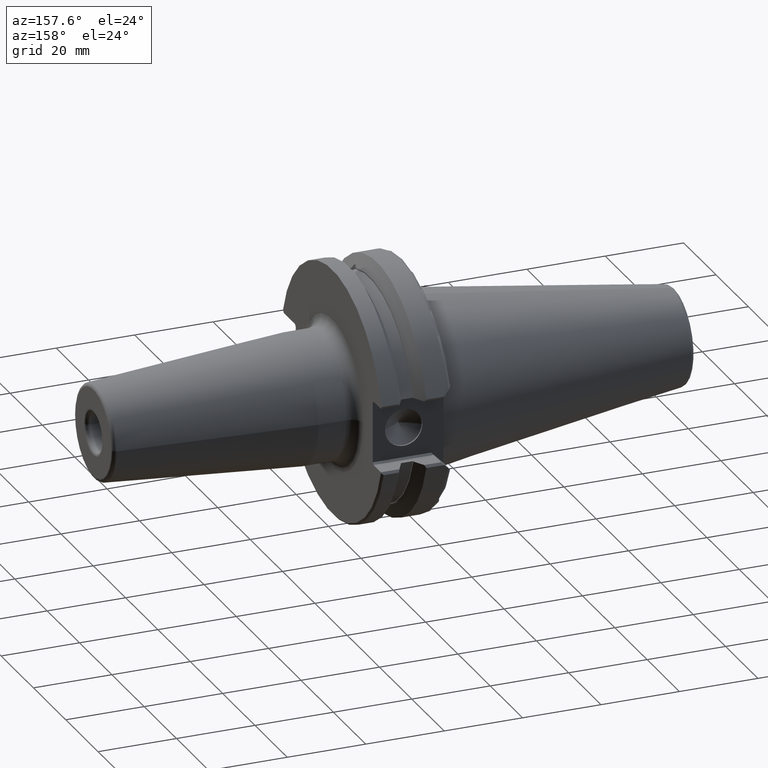
[diagram: clean part render]
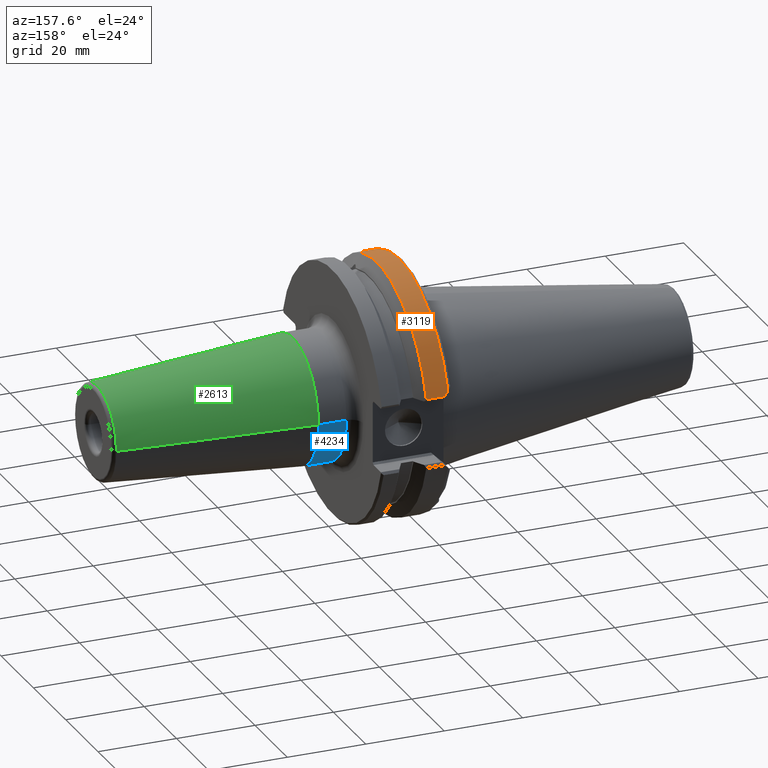
[diagram: same view with three faces highlighted in distinct colors, each labeled with its STEP entity id]
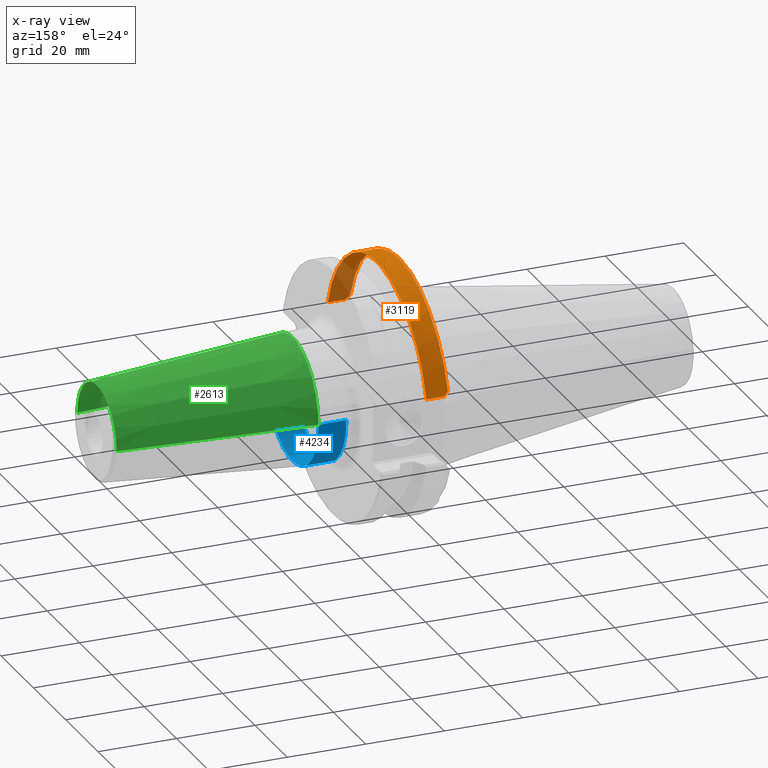
[diagram: x-ray of the same camera — body ghosted, the three highlighted faces saturated]
A machine part, auxiliary view with three faces highlighted in distinct colors.
The next image is the same camera in x-ray (body ghosted, the three faces saturated) — at least one of them is partly hidden behind the body in this view.
Their STEP definitions:

[orange] entity #3119 — the highlighted cylindrical surface (partial cylindrical patch) has radius 31.75 mm, axis along (1, 0, 0).
#699=DIRECTION('',(-1.E0,0.E0,0.E0));
#700=VECTOR('',#699,4.588873230924E0);
#701=CARTESIAN_POINT('',(7.649833230924E0,3.049771389266E1,8.82904E0));
#702=LINE('',#701,#700);
#703=DIRECTION('',(1.E0,0.E0,0.E0));
#704=VECTOR('',#703,4.588873230924E0);
#705=CARTESIAN_POINT('',(3.06096E0,-3.049771389266E1,8.82904E0));
#706=LINE('',#705,#704);
#707=CARTESIAN_POINT('',(2.E0,-3.017035631212E1,9.89E0));
#708=CARTESIAN_POINT('',(2.352653116158E0,-3.028595784107E1,9.537346883842E0));
#709=CARTESIAN_POINT('',(2.706311587220E0,-3.039504373733E1,9.183688412780E0));
#710=CARTESIAN_POINT('',(3.06096E0,-3.049771389266E1,8.82904E0));
#712=CARTESIAN_POINT('',(3.06096E0,3.049771389266E1,8.82904E0));
#713=CARTESIAN_POINT('',(2.706311587220E0,3.039504373733E1,9.183688412780E0));
#714=CARTESIAN_POINT('',(2.352653116158E0,3.028595784107E1,9.537346883842E0));
#715=CARTESIAN_POINT('',(2.E0,3.017035631212E1,9.89E0));
#807=CARTESIAN_POINT('',(7.649833230924E0,-3.049771389266E1,8.82904E0));
#813=CARTESIAN_POINT('',(7.649833230924E0,0.E0,0.E0));
#814=DIRECTION('',(-1.E0,0.E0,0.E0));
#815=DIRECTION('',(0.E0,-9.605579178790E-1,2.7808E-1));
#816=AXIS2_PLACEMENT_3D('',#813,#814,#815);
#822=CARTESIAN_POINT('',(7.649833230924E0,3.049771389266E1,8.82904E0));
#1033=CARTESIAN_POINT('',(2.E0,-3.017035631212E1,9.89E0));
#1468=CARTESIAN_POINT('',(2.E0,0.E0,0.E0));
#1469=DIRECTION('',(1.E0,0.E0,0.E0));
#1470=DIRECTION('',(0.E0,9.502474429013E-1,3.114960629921E-1));
#1471=AXIS2_PLACEMENT_3D('',#1468,#1469,#1470);
#1494=CARTESIAN_POINT('',(2.E0,3.017035631212E1,9.89E0));
#1917=VERTEX_POINT('',#1033);
#1920=VERTEX_POINT('',#1494);
#1934=CARTESIAN_POINT('',(3.06096E0,3.049771389266E1,8.82904E0));
#1936=VERTEX_POINT('',#1934);
#1940=VERTEX_POINT('',#822);
#1947=VERTEX_POINT('',#807);
#1951=CARTESIAN_POINT('',(3.06096E0,-3.049771389266E1,8.82904E0));
#1952=VERTEX_POINT('',#1951);
#3100=CARTESIAN_POINT('',(9.75E-2,0.E0,0.E0));
#3101=DIRECTION('',(1.E0,0.E0,0.E0));
#3102=DIRECTION('',(0.E0,0.E0,1.E0));
#3103=AXIS2_PLACEMENT_3D('',#3100,#3101,#3102);
#3104=CYLINDRICAL_SURFACE('',#3103,3.175E1);
#3106=ORIENTED_EDGE('',*,*,#3105,.F.);
#3108=ORIENTED_EDGE('',*,*,#3107,.F.);
#3110=ORIENTED_EDGE('',*,*,#3109,.F.);
#3112=ORIENTED_EDGE('',*,*,#3111,.F.);
#3114=ORIENTED_EDGE('',*,*,#3113,.F.);
#3116=ORIENTED_EDGE('',*,*,#3115,.F.);
#3117=EDGE_LOOP('',(#3106,#3108,#3110,#3112,#3114,#3116));
#3118=FACE_OUTER_BOUND('',#3117,.F.);
#3119=ADVANCED_FACE('',(#3118),#3104,.T.);
#711=B_SPLINE_CURVE_WITH_KNOTS('',3,(#707,#708,#709,#710),.UNSPECIFIED.,.F.,.F.,
(4,4),(0.E0,1.E0),.UNSPECIFIED.);
#716=B_SPLINE_CURVE_WITH_KNOTS('',3,(#712,#713,#714,#715),.UNSPECIFIED.,.F.,.F.,
(4,4),(0.E0,1.E0),.UNSPECIFIED.);
#817=CIRCLE('',#816,3.175E1);
#1472=CIRCLE('',#1471,3.175E1);
#3105=EDGE_CURVE('',#1940,#1936,#702,.T.);
#3107=EDGE_CURVE('',#1947,#1940,#817,.T.);
#3109=EDGE_CURVE('',#1952,#1947,#706,.T.);
#3111=EDGE_CURVE('',#1917,#1952,#711,.T.);
#3113=EDGE_CURVE('',#1920,#1917,#1472,.T.);
#3115=EDGE_CURVE('',#1936,#1920,#716,.T.);

[blue] entity #4234 — the highlighted cylindrical surface (partial cylindrical patch) has radius 16.0001 mm, axis along (1, 0, 0).
#1776=CARTESIAN_POINT('',(2.205E1,0.E0,0.E0));
#1777=DIRECTION('',(1.E0,0.E0,0.E0));
#1778=DIRECTION('',(0.E0,-1.E0,0.E0));
#1779=AXIS2_PLACEMENT_3D('',#1776,#1777,#1778);
#1781=DIRECTION('',(-1.E0,0.E0,-1.144742428837E-12));
#1782=VECTOR('',#1781,7.125061611514E0);
#1783=CARTESIAN_POINT('',(2.917506161151E1,-1.600005840383E1,0.E0));
#1784=LINE('',#1783,#1782);
#1785=CARTESIAN_POINT('',(2.917506161151E1,0.E0,0.E0));
#1786=DIRECTION('',(-1.E0,0.E0,0.E0));
#1787=DIRECTION('',(0.E0,1.E0,0.E0));
#1788=AXIS2_PLACEMENT_3D('',#1785,#1786,#1787);
#1790=DIRECTION('',(-1.E0,0.E0,1.144671729337E-12));
#1791=VECTOR('',#1790,7.125061611514E0);
#1792=CARTESIAN_POINT('',(2.917506161151E1,1.600005840383E1,0.E0));
#1793=LINE('',#1792,#1791);
#2103=CARTESIAN_POINT('',(2.917506161151E1,1.600005840383E1,0.E0));
#2104=CARTESIAN_POINT('',(2.917506161151E1,-1.600005840383E1,0.E0));
#2105=VERTEX_POINT('',#2103);
#2106=VERTEX_POINT('',#2104);
#2155=CARTESIAN_POINT('',(2.205E1,-1.600005840383E1,0.E0));
#2156=CARTESIAN_POINT('',(2.205E1,1.600005840383E1,0.E0));
#2157=VERTEX_POINT('',#2155);
#2158=VERTEX_POINT('',#2156);
#4223=CARTESIAN_POINT('',(1.60025E1,0.E0,0.E0));
#4224=DIRECTION('',(1.E0,0.E0,0.E0));
#4225=DIRECTION('',(0.E0,-1.E0,0.E0));
#4226=AXIS2_PLACEMENT_3D('',#4223,#4224,#4225);
#4227=CYLINDRICAL_SURFACE('',#4226,1.600005840383E1);
#4228=ORIENTED_EDGE('',*,*,#4217,.F.);
#4229=ORIENTED_EDGE('',*,*,#2636,.F.);
#4230=ORIENTED_EDGE('',*,*,#2593,.F.);
#4231=ORIENTED_EDGE('',*,*,#2633,.T.);
#4232=EDGE_LOOP('',(#4228,#4229,#4230,#4231));
#4233=FACE_OUTER_BOUND('',#4232,.F.);
#4234=ADVANCED_FACE('',(#4233),#4227,.T.);
#1780=CIRCLE('',#1779,1.600005840383E1);
#1789=CIRCLE('',#1788,1.600005840383E1);
#2593=EDGE_CURVE('',#2105,#2106,#1789,.T.);
#2633=EDGE_CURVE('',#2105,#2158,#1793,.T.);
#2636=EDGE_CURVE('',#2106,#2157,#1784,.T.);
#4217=EDGE_CURVE('',#2157,#2158,#1780,.T.);

[green] entity #2613 — the highlighted conical surface has half-angle 4.5 deg.
#268=DIRECTION('',(-9.969172585512E-1,7.846005099922E-2,0.E0));
#269=VECTOR('',#268,5.005771342750E1);
#270=CARTESIAN_POINT('',(7.907846005100E1,1.207252765541E1,
-2.235396996445E-13));
#271=LINE('',#270,#269);
#272=DIRECTION('',(-9.969172585512E-1,-7.846005099922E-2,0.E0));
#273=VECTOR('',#272,5.005771342750E1);
#274=CARTESIAN_POINT('',(7.907846005100E1,-1.207252765541E1,
2.201932996010E-13));
#275=LINE('',#274,#273);
#276=CARTESIAN_POINT('',(7.907846005100E1,0.E0,0.E0));
#277=DIRECTION('',(-1.E0,0.E0,0.E0));
#278=DIRECTION('',(0.E0,-1.E0,0.E0));
#279=AXIS2_PLACEMENT_3D('',#276,#277,#278);
#291=CARTESIAN_POINT('',(2.917506161151E1,0.E0,0.E0));
#292=DIRECTION('',(1.E0,0.E0,0.E0));
#293=DIRECTION('',(0.E0,1.E0,0.E0));
#294=AXIS2_PLACEMENT_3D('',#291,#292,#293);
#2103=CARTESIAN_POINT('',(2.917506161151E1,1.600005840383E1,0.E0));
#2104=CARTESIAN_POINT('',(2.917506161151E1,-1.600005840383E1,0.E0));
#2105=VERTEX_POINT('',#2103);
#2106=VERTEX_POINT('',#2104);
#2135=CARTESIAN_POINT('',(7.907846005100E1,1.207252765541E1,0.E0));
#2136=CARTESIAN_POINT('',(7.907846005100E1,-1.207252765541E1,0.E0));
#2137=VERTEX_POINT('',#2135);
#2138=VERTEX_POINT('',#2136);
#2600=CARTESIAN_POINT('',(5.412676083126E1,0.E0,0.E0));
#2601=DIRECTION('',(-1.E0,0.E0,0.E0));
#2602=DIRECTION('',(0.E0,1.E0,0.E0));
#2603=AXIS2_PLACEMENT_3D('',#2600,#2601,#2602);
#2604=CONICAL_SURFACE('',#2603,1.403629302962E1,4.500054902266E0);
#2606=ORIENTED_EDGE('',*,*,#2605,.F.);
#2607=ORIENTED_EDGE('',*,*,#2595,.T.);
#2609=ORIENTED_EDGE('',*,*,#2608,.F.);
#2610=ORIENTED_EDGE('',*,*,#2591,.F.);
#2611=EDGE_LOOP('',(#2606,#2607,#2609,#2610));
#2612=FACE_OUTER_BOUND('',#2611,.F.);
#2613=ADVANCED_FACE('',(#2612),#2604,.T.);
#280=CIRCLE('',#279,1.207252765541E1);
#295=CIRCLE('',#294,1.600005840383E1);
#2591=EDGE_CURVE('',#2137,#2105,#271,.T.);
#2595=EDGE_CURVE('',#2138,#2106,#275,.T.);
#2605=EDGE_CURVE('',#2138,#2137,#280,.T.);
#2608=EDGE_CURVE('',#2105,#2106,#295,.T.);